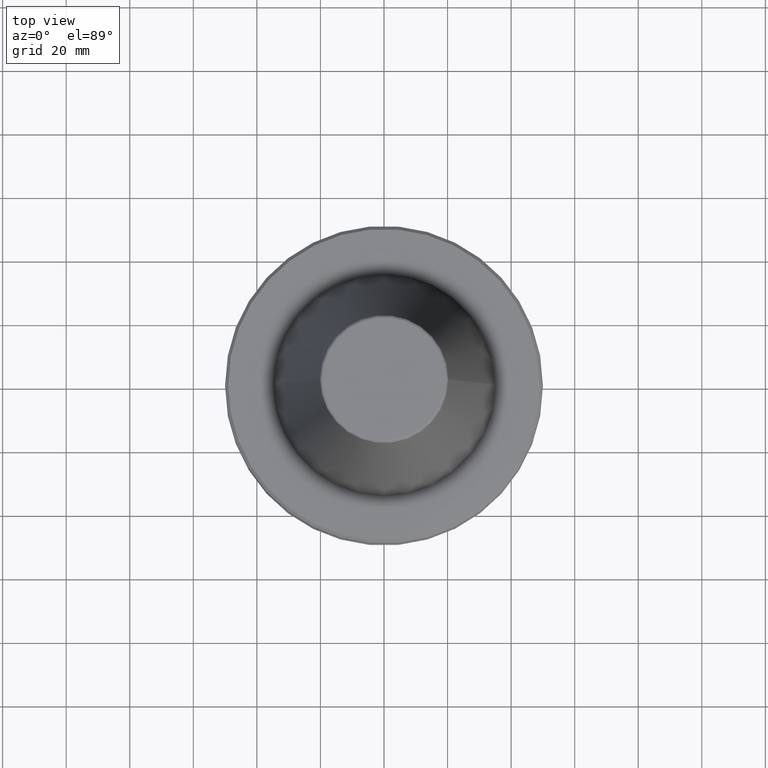
[diagram: clean part render]
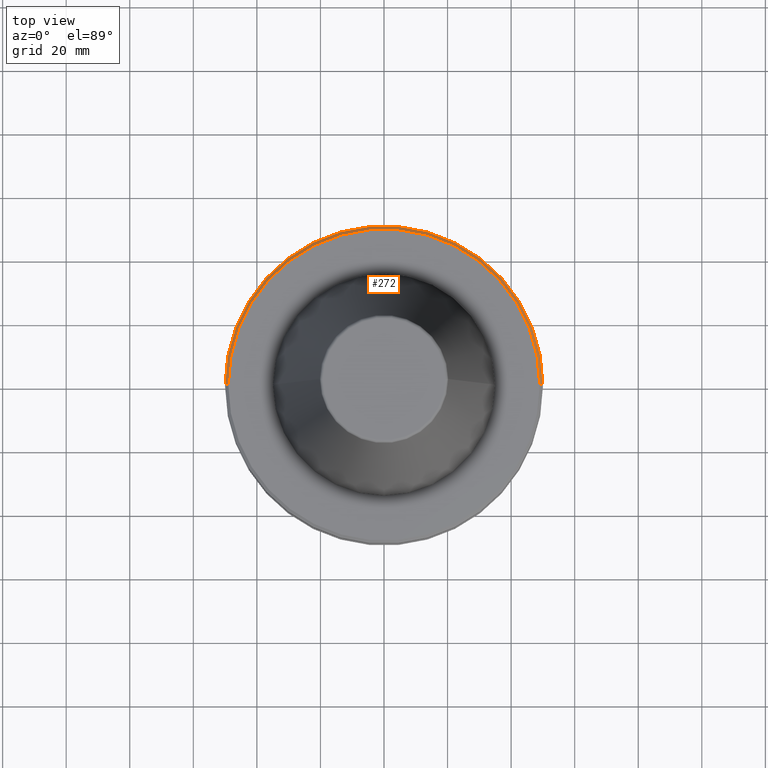
[diagram: same view with one face highlighted and labeled with its STEP entity id]
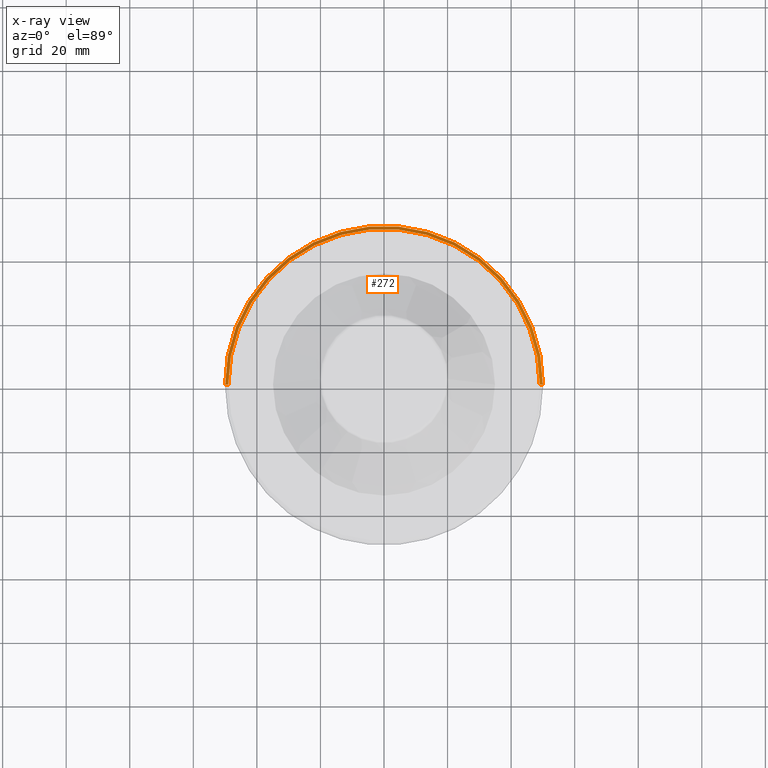
[diagram: x-ray of the same camera — body ghosted, the highlighted face saturated]
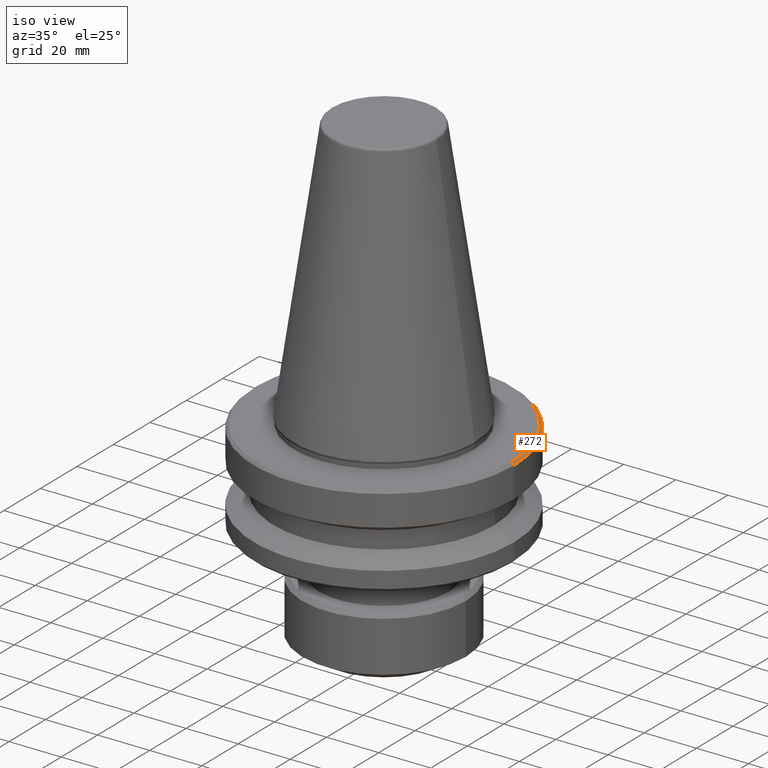
[diagram: same view with one face highlighted and labeled with its STEP entity id]
A machine part, top view. The second image highlights one B-rep face of the part: STEP entity #272.
The next image is the same camera in x-ray: the body ghosted, the highlighted face saturated — about 0% of this face is hidden behind the body in this view.
A second angle (iso view) of the same face is appended — the face is thin or edge-on in the first view.
In plain terms, the highlighted conical surface has half-angle 45 deg.
Its self-contained STEP definition (entity closure, byte-faithful):
#17 = DIRECTION ( 'NONE',  ( 1.000000000000000000, 0.0000000000000000000, 0.0000000000000000000 ) ) ;
#45 = VERTEX_POINT ( 'NONE', #954 ) ;
#54 = CARTESIAN_POINT ( 'NONE',  ( -48.99999999999992900, 0.0000000000000000000, -3.000000000001334900 ) ) ;
#59 = CARTESIAN_POINT ( 'NONE',  ( -49.99999999999993600, 6.123233995736758200E-015, -4.000000000001335800 ) ) ;
#92 = VERTEX_POINT ( 'NONE', #565 ) ;
#103 = CARTESIAN_POINT ( 'NONE',  ( 49.99999999999993600, 6.123233995736758200E-015, -4.000000000001335800 ) ) ;
#168 = CONICAL_SURFACE ( 'NONE', #877, 49.99999999999993600, 0.7853981633974482800 ) ;
#272 = ADVANCED_FACE ( 'NONE', ( #1147 ), #168, .T. ) ;
#288 = AXIS2_PLACEMENT_3D ( 'NONE', #494, #1133, #582 ) ;
#366 = DIRECTION ( 'NONE',  ( -1.000000000000000000, 0.0000000000000000000, 0.0000000000000000000 ) ) ;
#370 = EDGE_CURVE ( 'NONE', #849, #893, #1073, .T. ) ;
#383 = VECTOR ( 'NONE', #948, 1000.000000000000000 ) ;
#398 = CARTESIAN_POINT ( 'NONE',  ( -49.99999999999993600, 0.0000000000000000000, -4.000000000001335800 ) ) ;
#436 = AXIS2_PLACEMENT_3D ( 'NONE', #1094, #560, #17 ) ;
#452 = ORIENTED_EDGE ( 'NONE', *, *, #1105, .T. ) ;
#494 = CARTESIAN_POINT ( 'NONE',  ( 0.0000000000000000000, 0.0000000000000000000, -3.000000000001334900 ) ) ;
#516 = CIRCLE ( 'NONE', #288, 48.99999999999992900 ) ;
#556 = ORIENTED_EDGE ( 'NONE', *, *, #592, .T. ) ;
#560 = DIRECTION ( 'NONE',  ( -0.0000000000000000000, -0.0000000000000000000, 1.000000000000000000 ) ) ;
#565 = CARTESIAN_POINT ( 'NONE',  ( 49.99999999999993600, 0.0000000000000000000, -4.000000000001335800 ) ) ;
#582 = DIRECTION ( 'NONE',  ( 1.000000000000000000, 0.0000000000000000000, 0.0000000000000000000 ) ) ;
#592 = EDGE_CURVE ( 'NONE', #45, #92, #912, .T. ) ;
#750 = EDGE_LOOP ( 'NONE', ( #1125, #556, #452, #932 ) ) ;
#758 = EDGE_CURVE ( 'NONE', #45, #849, #516, .T. ) ;
#761 = CARTESIAN_POINT ( 'NONE',  ( 0.0000000000000000000, 0.0000000000000000000, -4.000000000001335800 ) ) ;
#849 = VERTEX_POINT ( 'NONE', #54 ) ;
#876 = VECTOR ( 'NONE', #1091, 1000.000000000000000 ) ;
#877 = AXIS2_PLACEMENT_3D ( 'NONE', #761, #966, #366 ) ;
#893 = VERTEX_POINT ( 'NONE', #59 ) ;
#912 = LINE ( 'NONE', #103, #876 ) ;
#932 = ORIENTED_EDGE ( 'NONE', *, *, #370, .F. ) ;
#948 = DIRECTION ( 'NONE',  ( -0.7071067811865474600, 0.0000000000000000000, -0.7071067811865475700 ) ) ;
#954 = CARTESIAN_POINT ( 'NONE',  ( 48.99999999999992900, 6.062001655779390600E-015, -3.000000000001334900 ) ) ;
#966 = DIRECTION ( 'NONE',  ( 0.0000000000000000000, 0.0000000000000000000, -1.000000000000000000 ) ) ;
#1069 = CIRCLE ( 'NONE', #436, 49.99999999999993600 ) ;
#1073 = LINE ( 'NONE', #398, #383 ) ;
#1091 = DIRECTION ( 'NONE',  ( 0.7071067811865474600, 8.659560562354931600E-017, -0.7071067811865475700 ) ) ;
#1094 = CARTESIAN_POINT ( 'NONE',  ( 0.0000000000000000000, 0.0000000000000000000, -4.000000000001335800 ) ) ;
#1105 = EDGE_CURVE ( 'NONE', #92, #893, #1069, .T. ) ;
#1125 = ORIENTED_EDGE ( 'NONE', *, *, #758, .F. ) ;
#1133 = DIRECTION ( 'NONE',  ( -0.0000000000000000000, -0.0000000000000000000, 1.000000000000000000 ) ) ;
#1147 = FACE_OUTER_BOUND ( 'NONE', #750, .T. ) ;